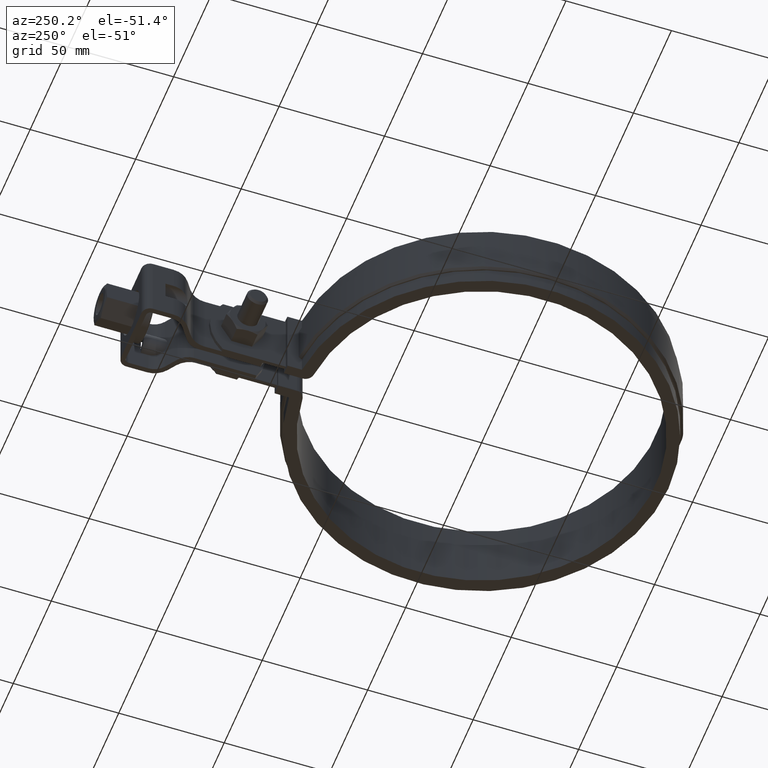
[diagram: clean part render]
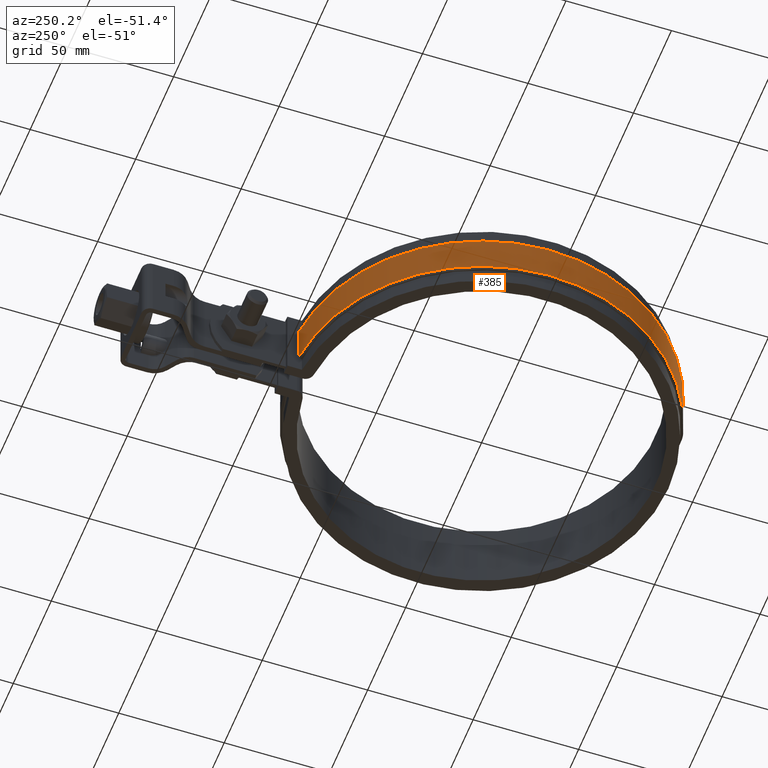
[diagram: same view with one face highlighted and labeled with its STEP entity id]
A machine part, auxiliary view. The second image highlights one B-rep face of the part: STEP entity #385.
In plain terms, the highlighted cylindrical surface (partial cylindrical patch) has radius 90.1 mm, axis along (0, 0, -1).
Its self-contained STEP definition (entity closure, byte-faithful):
#385 = ADVANCED_FACE( '', ( #643 ), #644, .T. );
#643 = FACE_OUTER_BOUND( '', #1778, .T. );
#644 = CYLINDRICAL_SURFACE( '', #1779, 90.1000000000000 );
#1778 = EDGE_LOOP( '', ( #4100, #4101, #4102, #4103 ) );
#1779 = AXIS2_PLACEMENT_3D( '', #4104, #4105, #4106 );
#4100 = ORIENTED_EDGE( '', *, *, #5136, .F. );
#4101 = ORIENTED_EDGE( '', *, *, #5185, .T. );
#4102 = ORIENTED_EDGE( '', *, *, #5155, .T. );
#4103 = ORIENTED_EDGE( '', *, *, #5183, .T. );
#4104 = CARTESIAN_POINT( '', ( 3.46944695195361E-015, 2.77555756156289E-014, -26.0000000000000 ) );
#4105 = DIRECTION( '', ( 0.000000000000000, 0.000000000000000, -1.00000000000000 ) );
#4106 = DIRECTION( '', ( 0.279817321684446, 0.960053262316911, 0.000000000000000 ) );
#5136 = EDGE_CURVE( '', #5727, #5729, #5730, .T. );
#5155 = EDGE_CURVE( '', #5761, #5762, #5763, .T. );
#5183 = EDGE_CURVE( '', #5762, #5729, #5805, .T. );
#5185 = EDGE_CURVE( '', #5727, #5761, #5807, .F. );
#5727 = VERTEX_POINT( '', #8600 );
#5729 = VERTEX_POINT( '', #8605 );
#5730 = LINE( '', #8606, #8607 );
#5761 = VERTEX_POINT( '', #8648 );
#5762 = VERTEX_POINT( '', #8649 );
#5763 = LINE( '', #8650, #8651 );
#5805 = CIRCLE( '', #8706, 90.1000000000000 );
#5807 = CIRCLE( '', #8709, 90.1000000000000 );
#8600 = CARTESIAN_POINT( '', ( -8.40000000000000, 89.7075805046598, -25.0000000000000 ) );
#8605 = CARTESIAN_POINT( '', ( -8.40000000000000, 89.7075805046597, -6.99999999999999 ) );
#8606 = CARTESIAN_POINT( '', ( -8.39999999999998, 89.7075805046597, -26.0000000000000 ) );
#8607 = VECTOR( '', #9687, 1000.00000000000 );
#8648 = CARTESIAN_POINT( '', ( -25.2115406837686, -86.5007989347536, -25.0000000000000 ) );
#8649 = CARTESIAN_POINT( '', ( -25.2115406837686, -86.5007989347536, -6.99999999999999 ) );
#8650 = CARTESIAN_POINT( '', ( -25.2115406837686, -86.5007989347536, -26.0000000000000 ) );
#8651 = VECTOR( '', #9725, 1000.00000000000 );
#8706 = AXIS2_PLACEMENT_3D( '', #9781, #9782, #9783 );
#8709 = AXIS2_PLACEMENT_3D( '', #9785, #9786, #9787 );
#9687 = DIRECTION( '', ( 0.000000000000000, 0.000000000000000, 1.00000000000000 ) );
#9725 = DIRECTION( '', ( 0.000000000000000, 0.000000000000000, 1.00000000000000 ) );
#9781 = CARTESIAN_POINT( '', ( 3.46944695195361E-015, 2.77555756156289E-014, -7.00000000000000 ) );
#9782 = DIRECTION( '', ( 0.000000000000000, 0.000000000000000, -1.00000000000000 ) );
#9783 = DIRECTION( '', ( -1.00000000000000, 0.000000000000000, 0.000000000000000 ) );
#9785 = CARTESIAN_POINT( '', ( 3.46944695195361E-015, 2.77555756156289E-014, -25.0000000000000 ) );
#9786 = DIRECTION( '', ( 0.000000000000000, 0.000000000000000, -1.00000000000000 ) );
#9787 = DIRECTION( '', ( -1.00000000000000, 0.000000000000000, 0.000000000000000 ) );